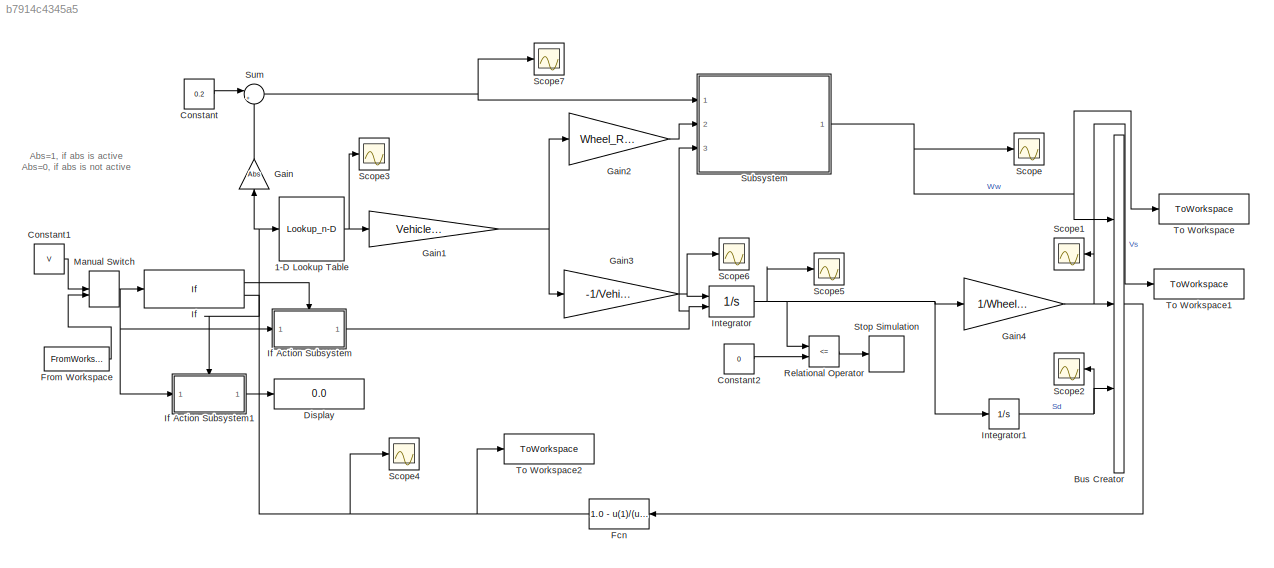
MODEL slx_b7914c4345a5
KIND model
CONFIG AbsTol = auto
CONFIG EnableMultiTasking = off
CONFIG FixedStep = auto
CONFIG InitFcn = Cyclist_weight=85;\nVehicle_mass = 0.25; %Tire weight= 250g\ngr = 9.81;\nWheel_Inertia = 0.0064;\nWheel_Radius = 0.3;\nV=6.95; % in m/s \nEffective_Radius_of_Disc = 0.16;\nCoefficient_of_Brake_friction = 0.9;\npb=200;\nNumber_of_brake_pad = 1;\nTB =0.01;\nAbs=1;
CONFIG MaxStep = 0.001
CONFIG MinStep = auto
CONFIG RelTol = 1e-3
CONFIG SampleTimeConstraint = Unconstrained
CONFIG Solver = VariableStepAuto
CONFIG SolverName = VariableStepAuto
CONFIG StartTime = 0.0
CONFIG StopTime = 20
BLOCK [Lookup_n-D] 1-D Lookup Table
  BreakpointsForDimension1 = [0	0.0500000000000000	0.100000000000000	0.150000000000000	0.200000000000000	0.250000000000000	0.300000000000000	0.350000000000000	0.400000000000000	0.450000000000000	0.500000000000000	0.550000000000000	0.600000000000000	0.650000000000000	0.700000000000000	0.750000000000000	0.800000000000000	0.850000000000000	0.900000000000000	0.950000000000000	1]
  InternalRulePriority = Speed
  NumberOfTableDimensions = 1
  Ports = [1, 1]
  RndMeth = Simplest
  Table = [0	0.400000000000000	0.800000000000000	0.970000000000000	1	0.980000000000000	0.960000000000000	0.940000000000000	0.920000000000000	0.900000000000000	0.880000000000000	0.855000000000000	0.830000000000000	0.810000000000000	0.790000000000000	0.770000000000000	0.750000000000000	0.730000000000000	0.720000000000000	0.710000000000000	0.700000000000000]
BLOCK [BusCreator] Bus Creator
  DisplayOption = bar
  InheritFromInputs = on
  Inputs = 3
  Ports = [3, 1]
BLOCK [Constant] Constant
  Value = 0.2
BLOCK [Constant] Constant1
  Value = V
BLOCK [Constant] Constant2
  Value = 0
BLOCK [Display] Display
  Decimation = 1
  Ports = [1]
BLOCK [Fcn] Fcn
  Expr = 1.0 - u(1)/(u(2)+ (u(2)==0) * eps)
BLOCK [FromWorkspace] From Workspace
  SampleTime = 0
  VariableName = out.Velocitytesting
  ZeroCross = on
BLOCK [Gain] Gain
  Gain = Abs
  OutDataTypeStr = Inherit: Inherit via internal rule
  ParamDataTypeStr = Inherit: Inherit via internal rule
  SaturateOnIntegerOverflow = off
BLOCK [Gain] Gain1
  Gain = Vehicle_mass * gr /2
  OutDataTypeStr = Inherit: Inherit via internal rule
  ParamDataTypeStr = Inherit: Inherit via internal rule
  SaturateOnIntegerOverflow = off
BLOCK [Gain] Gain2
  Gain = Wheel_Radius
  OutDataTypeStr = Inherit: Inherit via internal rule
  ParamDataTypeStr = Inherit: Inherit via internal rule
  SaturateOnIntegerOverflow = off
BLOCK [Gain] Gain3
  Gain = -1/Vehicle_mass
  OutDataTypeStr = Inherit: Inherit via internal rule
  ParamDataTypeStr = Inherit: Inherit via internal rule
  SaturateOnIntegerOverflow = off
BLOCK [Gain] Gain4
  Gain = 1/Wheel_Radius
  OutDataTypeStr = Inherit: Inherit via internal rule
  ParamDataTypeStr = Inherit: Inherit via internal rule
  SaturateOnIntegerOverflow = off
BLOCK [If] If
  Ports = [1, 2]
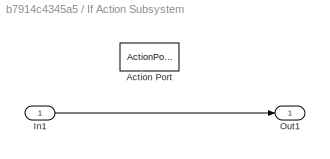
BLOCK [SubSystem] If Action Subsystem
  Ports = [1, 1, 0, 0, 0, 0, 0, 1]
  RequestExecContextInheritance = off
  TreatAsAtomicUnit = on
BLOCK [ActionPort] If Action Subsystem/Action Port
  ActionPortLabel = if(u1 > 0)
BLOCK [Inport] If Action Subsystem/In1
  IconDisplay = Port number
BLOCK [Outport] If Action Subsystem/Out1
  IconDisplay = Port number
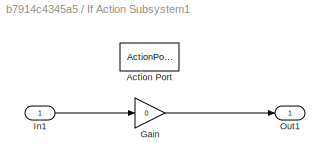
BLOCK [SubSystem] If Action Subsystem1
  Ports = [1, 1, 0, 0, 0, 0, 0, 1]
  RequestExecContextInheritance = off
  TreatAsAtomicUnit = on
BLOCK [ActionPort] If Action Subsystem1/Action Port
  ActionPortLabel = else
BLOCK [Gain] If Action Subsystem1/Gain
  Gain = 0
  OutDataTypeStr = Inherit: Inherit via internal rule
  ParamDataTypeStr = Inherit: Inherit via internal rule
  SaturateOnIntegerOverflow = off
BLOCK [Inport] If Action Subsystem1/In1
  IconDisplay = Port number
BLOCK [Outport] If Action Subsystem1/Out1
  IconDisplay = Port number
BLOCK [Integrator] Integrator
  InitialCondition = V
  InitialConditionSource = external
  LimitOutput = on
  LowerSaturationLimit = 0
  Ports = [2, 1]
  UpperSaturationLimit = 1000
BLOCK [Integrator] Integrator1
  Ports = [1, 1]
BLOCK [ManualSwitch] Manual Switch
  CurrentSetting = 0
BLOCK [RelationalOperator] Relational Operator
  InputSameDT = off
  Operator = <=
  OutDataTypeStr = boolean
  Ports = [2, 1]
  RndMeth = Simplest
BLOCK [Scope] Scope
  Floating = off
  NumInputPorts = 1
  Ports = [1]
  ScopeSpecificationString = Simulink.scopes.TimeScopeBlockCfg('CurrentConfiguration', extmgr.ConfigurationSet(extmgr.Configuration('Core','General UI',true),extmgr.Configuration('Core','Source UI',true),extmgr.Configuration('Sources','WiredSimulink',true),extmgr.Configuration('Visuals','Time Domain',true,'SerializedDisplays',{struct('MinYLimReal','-2.89583','MaxYLimReal','26.0625','YLabelReal','','MinYLimMag','0.00000','MaxY...<+1395ch>
BLOCK [Scope] Scope1
  Floating = off
  NumInputPorts = 1
  Ports = [1]
  ScopeSpecificationString = Simulink.scopes.TimeScopeBlockCfg('CurrentConfiguration', extmgr.ConfigurationSet(extmgr.Configuration('Core','General UI',true),extmgr.Configuration('Core','Source UI',true),extmgr.Configuration('Sources','WiredSimulink',true,'DataLoggingVariableName','ScopeData1'),extmgr.Configuration('Visuals','Time Domain',true,'SerializedDisplays',{struct('MinYLimReal','-1.00000','MaxYLimReal','1.00000','YLab...<+1432ch>
BLOCK [Scope] Scope2
  Floating = off
  NumInputPorts = 1
  Ports = [1]
  ScopeSpecificationString = Simulink.scopes.TimeScopeBlockCfg('CurrentConfiguration', extmgr.ConfigurationSet(extmgr.Configuration('Core','General UI',true),extmgr.Configuration('Core','Source UI',true),extmgr.Configuration('Sources','WiredSimulink',true,'DataLoggingVariableName','ScopeData2'),extmgr.Configuration('Visuals','Time Domain',true,'SerializedDisplays',{struct('MinYLimReal','-0.73558','MaxYLimReal','6.62026','YLab...<+1386ch>
BLOCK [Scope] Scope3
  Floating = off
  NumInputPorts = 1
  Ports = [1]
  ScopeSpecificationString = Simulink.scopes.TimeScopeBlockCfg('CurrentConfiguration', extmgr.ConfigurationSet(extmgr.Configuration('Core','General UI',true),extmgr.Configuration('Core','Source UI',true),extmgr.Configuration('Sources','WiredSimulink',true,'DataLoggingVariableName','ScopeData5'),extmgr.Configuration('Visuals','Time Domain',true,'SerializedDisplays',{struct('MinYLimReal','-3.68589','MaxYLimReal','1.52065','YLab...<+1400ch>
BLOCK [Scope] Scope4
  Floating = off
  NumInputPorts = 1
  Ports = [1]
  ScopeSpecificationString = Simulink.scopes.TimeScopeBlockCfg('CurrentConfiguration', extmgr.ConfigurationSet(extmgr.Configuration('Core','General UI',true),extmgr.Configuration('Core','Source UI',true),extmgr.Configuration('Sources','WiredSimulink',true,'DataLoggingVariableName','ScopeData7'),extmgr.Configuration('Visuals','Time Domain',true,'SerializedDisplays',{struct('MinYLimReal','-0.125','MaxYLimReal','1.125','YLabelRe...<+1423ch>
BLOCK [Scope] Scope5
  Floating = off
  NumInputPorts = 1
  Ports = [1]
  ScopeSpecificationString = Simulink.scopes.TimeScopeBlockCfg('CurrentConfiguration', extmgr.ConfigurationSet(extmgr.Configuration('Core','General UI',true),extmgr.Configuration('Core','Source UI',true),extmgr.Configuration('Sources','WiredSimulink',true,'DataLoggingVariableName','ScopeData1'),extmgr.Configuration('Visuals','Time Domain',true,'SerializedDisplays',{struct('MinYLimReal','-0.32458','MaxYLimReal','7.75829','YLab...<+1423ch>
BLOCK [Scope] Scope6
  Floating = off
  NumInputPorts = 1
  Ports = [1]
  ScopeSpecificationString = Simulink.scopes.TimeScopeBlockCfg('CurrentConfiguration', extmgr.ConfigurationSet(extmgr.Configuration('Core','General UI',true),extmgr.Configuration('Core','Source UI',true),extmgr.Configuration('Sources','WiredSimulink',true,'DataLoggingVariableName','ScopeData2'),extmgr.Configuration('Visuals','Time Domain',true,'SerializedDisplays',{struct('MinYLimReal','-8.69784','MaxYLimReal','29.2308','YLab...<+1389ch>
BLOCK [Scope] Scope7
  Floating = off
  NumInputPorts = 1
  Ports = [1]
  ScopeSpecificationString = Simulink.scopes.TimeScopeBlockCfg('CurrentConfiguration', extmgr.ConfigurationSet(extmgr.Configuration('Core','General UI',true),extmgr.Configuration('Core','Source UI',true),extmgr.Configuration('Sources','WiredSimulink',true,'DataLoggingVariableName','ScopeData1'),extmgr.Configuration('Visuals','Time Domain',true,'SerializedDisplays',{struct('MinYLimReal','-1.00603','MaxYLimReal','1.0543','YLabe...<+1383ch>
BLOCK [Stop] Stop Simulation
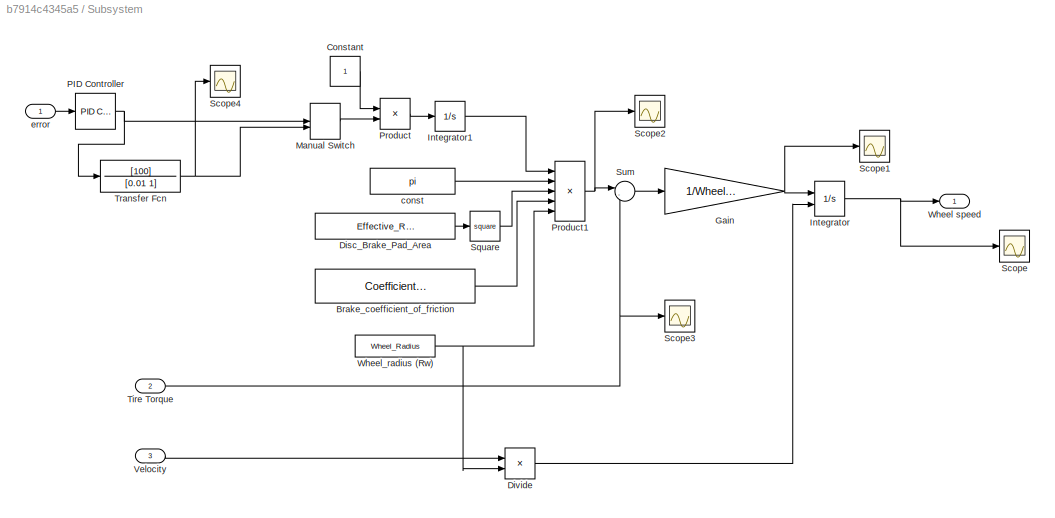
BLOCK [SubSystem] Subsystem
  Ports = [3, 1]
  RequestExecContextInheritance = off
BLOCK [Constant] Subsystem/Brake_coefficient_of_friction
  Value = Coefficient_of_Brake_friction
BLOCK [Constant] Subsystem/Constant
BLOCK [Constant] Subsystem/Disc_Brake_Pad_Area
  Value = Effective_Radius_of_Disc
BLOCK [Product] Subsystem/Divide
  InputSameDT = off
  Inputs = */
  OutDataTypeStr = Inherit: Inherit via internal rule
  Ports = [2, 1]
  RndMeth = Floor
  SaturateOnIntegerOverflow = off
BLOCK [Gain] Subsystem/Gain
  Gain = 1/Wheel_Inertia
  OutDataTypeStr = Inherit: Inherit via internal rule
  ParamDataTypeStr = Inherit: Inherit via internal rule
  SaturateOnIntegerOverflow = off
BLOCK [Integrator] Subsystem/Integrator
  InitialCondition = V/Wheel_Radius
  InitialConditionSource = external
  LimitOutput = on
  LowerSaturationLimit = 0
  Ports = [2, 1]
  UpperSaturationLimit = 1000
BLOCK [Integrator] Subsystem/Integrator1
  LimitOutput = on
  Ports = [1, 1]
  UpperSaturationLimit = pb
BLOCK [ManualSwitch] Subsystem/Manual Switch
  CurrentSetting = 0
BLOCK [Reference] Subsystem/PID Controller  REF=simulink/Continuous/PID Controller
  Ports = [1, 1]
  SourceBlock = simulink/Continuous/PID Controller
  SourceProductBaseCode = SL
  SourceProductName = Simulink
  SourceType = PID 1dof
BLOCK [Product] Subsystem/Product
  InputSameDT = off
  OutDataTypeStr = Inherit: Inherit via internal rule
  Ports = [2, 1]
  RndMeth = Floor
  SaturateOnIntegerOverflow = off
BLOCK [Product] Subsystem/Product1
  InputSameDT = off
  Inputs = 5
  OutDataTypeStr = Inherit: Inherit via internal rule
  Ports = [5, 1]
  RndMeth = Floor
  SaturateOnIntegerOverflow = off
BLOCK [Scope] Subsystem/Scope
  Floating = off
  NumInputPorts = 1
  Ports = [1]
  ScopeSpecificationString = Simulink.scopes.TimeScopeBlockCfg('CurrentConfiguration', extmgr.ConfigurationSet(extmgr.Configuration('Core','General UI',true),extmgr.Configuration('Core','Source UI',true),extmgr.Configuration('Sources','WiredSimulink',true,'DataLoggingVariableName','ScopeData3'),extmgr.Configuration('Visuals','Time Domain',true,'SerializedDisplays',{struct('MinYLimReal','-2.89583','MaxYLimReal','26.0625','YLab...<+1442ch>
BLOCK [Scope] Subsystem/Scope1
  Floating = off
  NumInputPorts = 1
  Ports = [1]
  ScopeSpecificationString = Simulink.scopes.TimeScopeBlockCfg('CurrentConfiguration', extmgr.ConfigurationSet(extmgr.Configuration('Core','General UI',true),extmgr.Configuration('Core','Source UI',true),extmgr.Configuration('Sources','WiredSimulink',true,'DataLoggingVariableName','ScopeData4'),extmgr.Configuration('Visuals','Time Domain',true,'SerializedDisplays',{struct('MinYLimReal','-66.45016','MaxYLimReal','75.06301','YL...<+1398ch>
BLOCK [Scope] Subsystem/Scope2
  Floating = off
  NumInputPorts = 1
  Ports = [1]
  ScopeSpecificationString = Simulink.scopes.TimeScopeBlockCfg('CurrentConfiguration', extmgr.ConfigurationSet(extmgr.Configuration('Core','General UI',true),extmgr.Configuration('Core','Source UI',true),extmgr.Configuration('Sources','WiredSimulink',true,'DataLoggingVariableName','ScopeData6'),extmgr.Configuration('Visuals','Time Domain',true,'SerializedDisplays',{struct('MinYLimReal','-0.13663','MaxYLimReal','0.67321','YLab...<+1392ch>
BLOCK [Scope] Subsystem/Scope3
  Floating = off
  NumInputPorts = 1
  Ports = [1]
  ScopeSpecificationString = Simulink.scopes.TimeScopeBlockCfg('CurrentConfiguration', extmgr.ConfigurationSet(extmgr.Configuration('Core','General UI',true),extmgr.Configuration('Core','Source UI',true),extmgr.Configuration('Sources','WiredSimulink',true,'DataLoggingVariableName','ScopeData3'),extmgr.Configuration('Visuals','Time Domain',true,'SerializedDisplays',{struct('MinYLimReal','-0.0945','MaxYLimReal','0.41923','YLabe...<+1368ch>
BLOCK [Scope] Subsystem/Scope4
  Floating = off
  NumInputPorts = 1
  Ports = [1]
  ScopeSpecificationString = Simulink.scopes.TimeScopeBlockCfg('CurrentConfiguration', extmgr.ConfigurationSet(extmgr.Configuration('Core','General UI',true),extmgr.Configuration('Core','Source UI',true),extmgr.Configuration('Sources','WiredSimulink',true,'DataLoggingVariableName','ScopeData1'),extmgr.Configuration('Visuals','Time Domain',true,'SerializedDisplays',{struct('MinYLimReal','-1599.82558','MaxYLimReal','852.61501',...<+1416ch>
BLOCK [Math] Subsystem/Square
  Operator = square
  Ports = [1, 1]
BLOCK [Sum] Subsystem/Sum
  IconShape = round
  InputSameDT = off
  Inputs = |-+
  OutDataTypeStr = Inherit: Inherit via internal rule
  Ports = [2, 1]
  SaturateOnIntegerOverflow = off
BLOCK [Inport] Subsystem/Tire Torque
  IconDisplay = Port number
  Port = 2
BLOCK [TransferFcn] Subsystem/Transfer Fcn
  Denominator = [0.01 1]
  Numerator = [100]
BLOCK [Inport] Subsystem/Velocity
  IconDisplay = Port number
  Port = 3
BLOCK [Outport] Subsystem/Wheel speed 
  IconDisplay = Port number
BLOCK [Constant] Subsystem/Wheel_radius (Rw) 
  Value = Wheel_Radius
BLOCK [Constant] Subsystem/const 
  Value = pi
BLOCK [Inport] Subsystem/error 
  IconDisplay = Port number
BLOCK [Sum] Sum
  IconShape = round
  InputSameDT = off
  Inputs = |+-
  OutDataTypeStr = Inherit: Inherit via internal rule
  Ports = [2, 1]
  SaturateOnIntegerOverflow = off
BLOCK [ToWorkspace] To Workspace
  FixptAsFi = on
  MaxDataPoints = inf
  Ports = [1]
  SampleTime = -1
  SaveFormat = Timeseries
  VariableName = ww
BLOCK [ToWorkspace] To Workspace1
  FixptAsFi = on
  MaxDataPoints = inf
  Ports = [1]
  SampleTime = -1
  SaveFormat = Timeseries
  VariableName = vw
BLOCK [ToWorkspace] To Workspace2
  FixptAsFi = on
  MaxDataPoints = inf
  Ports = [1]
  SampleTime = -1
  SaveFormat = Timeseries
  VariableName = slip
ANNOTATION (root): Abs=1, if abs is active Abs=0, if abs is not active
NET 1-D Lookup Table:1 -> Gain1:1, Scope3:1
LINE Bus Creator:1 -> Fcn:1
LINE Constant1:1 -> Manual Switch:1
LINE Constant2:1 -> Relational Operator:2
LINE Constant:1 -> Sum:1
NET Fcn:1 -> 1-D Lookup Table:1, Gain:1, Scope4:1, To Workspace2:1
LINE From Workspace:1 -> Manual Switch:2
NET Gain1:1 -> Gain2:1, Gain3:1
LINE Gain2:1 -> Subsystem:2
NET Gain3:1 -> Integrator:1, Scope6:1
NET Gain4:1 -> Bus Creator:2, Scope1:1, To Workspace1:1
LINE Gain:1 -> Sum:2
LINE If Action Subsystem/In1:1 -> If Action Subsystem/Out1:1
LINE If Action Subsystem1/Gain:1 -> If Action Subsystem1/Out1:1
LINE If Action Subsystem1/In1:1 -> If Action Subsystem1/Gain:1
LINE If Action Subsystem1:1 -> Display:1
NET If Action Subsystem:1 -> Integrator:2, Subsystem:3
LINE If:1 -> If Action Subsystem:ifaction
LINE If:2 -> If Action Subsystem1:ifaction
NET Integrator1:1 -> Bus Creator:3, Scope2:1
NET Integrator:1 -> Gain4:1, Integrator1:1, Relational Operator:1, Scope5:1
NET Manual Switch:1 -> If Action Subsystem1:1, If Action Subsystem:1, If:1
LINE Relational Operator:1 -> Stop Simulation:1
LINE Subsystem/Brake_coefficient_of_friction:1 -> Subsystem/Product1:4
LINE Subsystem/Constant:1 -> Subsystem/Product:1
LINE Subsystem/Disc_Brake_Pad_Area:1 -> Subsystem/Square:1
LINE Subsystem/Divide:1 -> Subsystem/Integrator:2
NET Subsystem/Gain:1 -> Subsystem/Integrator:1, Subsystem/Scope1:1
LINE Subsystem/Integrator1:1 -> Subsystem/Product1:1
NET Subsystem/Integrator:1 -> Subsystem/Scope:1, Subsystem/Wheel speed :1
LINE Subsystem/Manual Switch:1 -> Subsystem/Product:2
NET Subsystem/PID Controller:1 -> Subsystem/Manual Switch:1, Subsystem/Transfer Fcn:1
NET Subsystem/Product1:1 -> Subsystem/Scope2:1, Subsystem/Sum:1
LINE Subsystem/Product:1 -> Subsystem/Integrator1:1
LINE Subsystem/Square:1 -> Subsystem/Product1:3
LINE Subsystem/Sum:1 -> Subsystem/Gain:1
NET Subsystem/Tire Torque:1 -> Subsystem/Scope3:1, Subsystem/Sum:2
NET Subsystem/Transfer Fcn:1 -> Subsystem/Manual Switch:2, Subsystem/Scope4:1
LINE Subsystem/Velocity:1 -> Subsystem/Divide:1
NET Subsystem/Wheel_radius (Rw) :1 -> Subsystem/Divide:2, Subsystem/Product1:5
LINE Subsystem/const :1 -> Subsystem/Product1:2
LINE Subsystem/error :1 -> Subsystem/PID Controller:1
NET Subsystem:1 -> Bus Creator:1, Scope:1, To Workspace:1
NET Sum:1 -> Scope7:1, Subsystem:1
note: NET lines group one-source signal fan-out (src -> all destinations, sorted); 1:1 wires keep LINE
